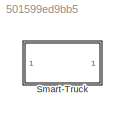
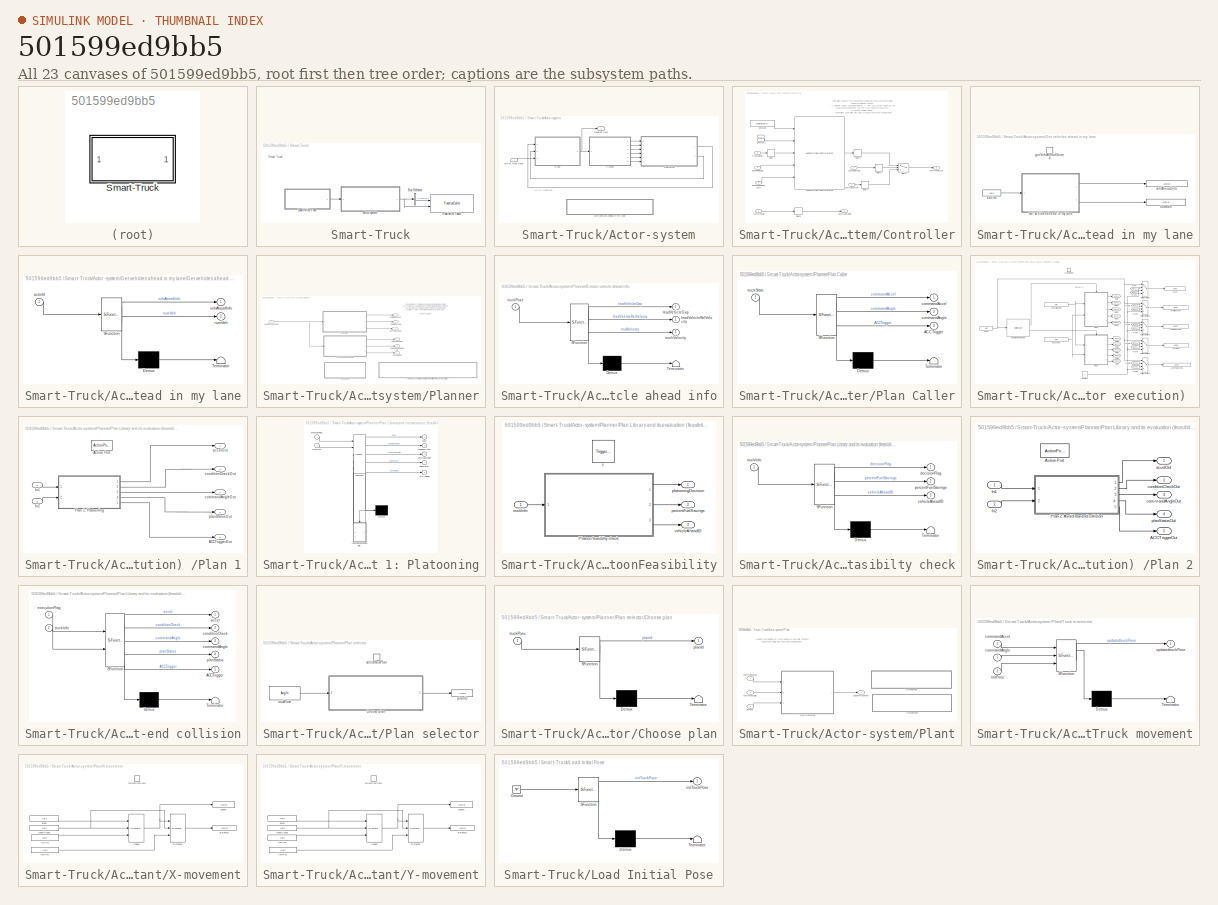
[diagram: thumbnail index - all 23 canvases of the model, root first then tree order]
MODEL slx_501599ed9bb5
KIND library
CONFIG AbsTol = auto
CONFIG EnableMultiTasking = off
CONFIG FixedStep = auto
CONFIG MaxStep = auto
CONFIG MinStep = auto
CONFIG RelTol = 1e-3
CONFIG SampleTimeConstraint = Unconstrained
CONFIG Solver = VariableStepAuto
CONFIG SolverName = VariableStepAuto
CONFIG StartTime = 0.0
CONFIG StopTime = 10.0
BLOCK [SubSystem] Smart-Truck
  InitFcn = % To get the offset for the truckId\nnumTrucks = actorCount();\ntruckXPosition(numTrucks) = str2num( get_param(gcb,'initXPos'));\ntruckVelocity(numTrucks) = str2num( get_param(gcb,'initXVel'));\n% To set the truckId\nset_param(gcb,'truckId',num2str(numTrucks + truckIdBase));\ndestXPos = get_param(gcb,'destXPos');\nactorDest(truckIdBase + numTrucks) = str2num(destXPos);
  Ports = []
  RequestExecContextInheritance = off
BLOCK [SubSystem] Smart-Truck/Actor-system
  Ports = [1, 1]
  RequestExecContextInheritance = off
BLOCK [SubSystem] Smart-Truck/Actor-system/Controller
  Ports = [6, 2]
  RequestExecContextInheritance = off
BLOCK [Inport] Smart-Truck/Actor-system/Controller/ commandAccel
  IconDisplay = Port number
BLOCK [Inport] Smart-Truck/Actor-system/Controller/ commandDir
  IconDisplay = Port number
  Port = 2
BLOCK [Inport] Smart-Truck/Actor-system/Controller/ leadVehicleGap
  IconDisplay = Port number
  Port = 4
BLOCK [Inport] Smart-Truck/Actor-system/Controller/ leadVehicleRelVelocity
  IconDisplay = Port number
  Port = 5
BLOCK [Inport] Smart-Truck/Actor-system/Controller/ truckVelocity
  IconDisplay = Port number
  Port = 6
BLOCK [Inport] Smart-Truck/Actor-system/Controller/ACCTriggerFlag
  IconDisplay = Port number
  Port = 3
BLOCK [Reference] Smart-Truck/Actor-system/Controller/Adaptive Cruise Control System  REF=mpcadaslib/Adaptive Cruise Control System
  Ports = [5, 1]
  SourceBlock = mpcadaslib/Adaptive Cruise Control System
  SourceProductBaseCode = MP
  SourceProductName = Model Predictive Control Toolbox
  SourceType = Adaptive cruise control (ACC) system
BLOCK [Constant] Smart-Truck/Actor-system/Controller/Constant
  SampleTime = -1
  Value = maxVelocity
BLOCK [Constant] Smart-Truck/Actor-system/Controller/Constant1
  Value = safeTimeGap
BLOCK [Delay] Smart-Truck/Actor-system/Controller/Delay
  DelayLength = 1
  InitialCondition = 0
  InputPortMap = u0
  Ports = [1, 1]
BLOCK [Delay] Smart-Truck/Actor-system/Controller/Delay1
  DelayLength = 1
  InitialCondition = 0
  InputPortMap = u0
  Ports = [1, 1]
BLOCK [Delay] Smart-Truck/Actor-system/Controller/Delay2
  DelayLength = 1
  InitialCondition = 0
  InputPortMap = u0
  Ports = [1, 1]
BLOCK [Delay] Smart-Truck/Actor-system/Controller/Delay3
  DelayLength = 1
  InitialCondition = 0
  InputPortMap = u0
  Ports = [1, 1]
BLOCK [Delay] Smart-Truck/Actor-system/Controller/Delay4
  DelayLength = 1
  InitialCondition = 0
  InputPortMap = u0
  Ports = [1, 1]
BLOCK [Switch] Smart-Truck/Actor-system/Controller/Switch
  Criteria = u2 ~= 0
  InputSameDT = off
  SaturateOnIntegerOverflow = off
BLOCK [Outport] Smart-Truck/Actor-system/Controller/commandAccel
  IconDisplay = Port number
BLOCK [Outport] Smart-Truck/Actor-system/Controller/commandAngle
  IconDisplay = Port number
  Port = 2
BLOCK [SubSystem] Smart-Truck/Actor-system/Get vehicles ahead in my lane
  Ports = [0, 0, 0, 1]
  RequestExecContextInheritance = off
  TreatAsAtomicUnit = on
BLOCK [SubSystem] Smart-Truck/Actor-system/Get vehicles ahead in my lane/Get vehicles ahead in my lane
  ErrorFcn = Stateflow.Translate.translate
  PermitHierarchicalResolution = ExplicitOnly
  Ports = [1, 2]
  RequestExecContextInheritance = off
  SFBlockType = MATLAB Function
  TreatAsAtomicUnit = on
BLOCK [Demux] Smart-Truck/Actor-system/Get vehicles ahead in my lane/Get vehicles ahead in my lane/ Demux 
  Outputs = 1
  Ports = [1, 1]
BLOCK [S-Function] Smart-Truck/Actor-system/Get vehicles ahead in my lane/Get vehicles ahead in my lane/ SFunction 
  EnableBusSupport = on
  FunctionName = sf_sfun
  Parameters = maxVehicles
  PortCounts = [1 3]
  Ports = [1, 3]
  SFcnIsStateOwnerBlock = off
  SFunctionDeploymentMode = off
  Tag = Stateflow S-Function smartTruckLib 15
BLOCK [Terminator] Smart-Truck/Actor-system/Get vehicles ahead in my lane/Get vehicles ahead in my lane/ Terminator 
BLOCK [Inport] Smart-Truck/Actor-system/Get vehicles ahead in my lane/Get vehicles ahead in my lane/actorId
  IconDisplay = Port number
BLOCK [Outport] Smart-Truck/Actor-system/Get vehicles ahead in my lane/Get vehicles ahead in my lane/numVeh
  IconDisplay = Port number
  Port = 2
BLOCK [Outport] Smart-Truck/Actor-system/Get vehicles ahead in my lane/Get vehicles ahead in my lane/vehAheadInfo
  IconDisplay = Port number
BLOCK [ArgIn] Smart-Truck/Actor-system/Get vehicles ahead in my lane/actorId
  ArgumentName = actorId
BLOCK [TriggerPort] Smart-Truck/Actor-system/Get vehicles ahead in my lane/getVehAheadSorted
  FunctionName = getVehAheadSorted
  FunctionVisibility = scoped
  IsSimulinkFunction = on
  Ports = []
  StatesWhenEnabling = held
  TriggerType = function-call
  VariantControl = (inherit)
BLOCK [ArgOut] Smart-Truck/Actor-system/Get vehicles ahead in my lane/numVeh
  ArgumentName = numVeh
BLOCK [ArgOut] Smart-Truck/Actor-system/Get vehicles ahead in my lane/vehAheadInfo
  ArgumentName = vehAheadInfo
  OutDataTypeStr = Bus: Vehicle
  Port = 2
  PortDimensions = maxVehicles
BLOCK [Inport] Smart-Truck/Actor-system/Initial Truck Pose
  IconDisplay = Port number
BLOCK [SubSystem] Smart-Truck/Actor-system/Planner
  Ports = [1, 6]
  RequestExecContextInheritance = off
BLOCK [Outport] Smart-Truck/Actor-system/Planner/ACCTriggerFlag
  IconDisplay = Port number
  Port = 3
BLOCK [SubSystem] Smart-Truck/Actor-system/Planner/Extract vehicle ahead info
  ErrorFcn = Stateflow.Translate.translate
  PermitHierarchicalResolution = ExplicitOnly
  Ports = [1, 3]
  RequestExecContextInheritance = off
  SFBlockType = MATLAB Function
  TreatAsAtomicUnit = on
BLOCK [Demux] Smart-Truck/Actor-system/Planner/Extract vehicle ahead info/ Demux 
  Outputs = 1
  Ports = [1, 1]
BLOCK [S-Function] Smart-Truck/Actor-system/Planner/Extract vehicle ahead info/ SFunction 
  EnableBusSupport = on
  FunctionName = sf_sfun
  Parameters = maxVelocity,safeTimeGap,standStillGap
  PortCounts = [1 4]
  Ports = [1, 4]
  SFcnIsStateOwnerBlock = off
  SFunctionDeploymentMode = off
  Tag = Stateflow S-Function smartTruckLib 16
BLOCK [Terminator] Smart-Truck/Actor-system/Planner/Extract vehicle ahead info/ Terminator 
BLOCK [Outport] Smart-Truck/Actor-system/Planner/Extract vehicle ahead info/leadVehicleGap
  IconDisplay = Port number
BLOCK [Outport] Smart-Truck/Actor-system/Planner/Extract vehicle ahead info/leadVehicleRelVelocity
  IconDisplay = Port number
  Port = 2
BLOCK [Inport] Smart-Truck/Actor-system/Planner/Extract vehicle ahead info/truckPose
  IconDisplay = Port number
BLOCK [Outport] Smart-Truck/Actor-system/Planner/Extract vehicle ahead info/truckVelocity
  IconDisplay = Port number
  Port = 3
BLOCK [SubSystem] Smart-Truck/Actor-system/Planner/Plan Caller
  ErrorFcn = Stateflow.Translate.translate
  PermitHierarchicalResolution = ExplicitOnly
  Ports = [1, 3]
  RequestExecContextInheritance = off
  SFBlockType = MATLAB Function
  TreatAsAtomicUnit = on
BLOCK [Demux] Smart-Truck/Actor-system/Planner/Plan Caller/ Demux 
  Outputs = 1
  Ports = [1, 1]
BLOCK [S-Function] Smart-Truck/Actor-system/Planner/Plan Caller/ SFunction 
  EnableBusSupport = on
  FunctionName = sf_sfun
  PortCounts = [1 4]
  Ports = [1, 4]
  SFcnIsStateOwnerBlock = off
  SFunctionDeploymentMode = off
  Tag = Stateflow S-Function smartTruckLib 17
BLOCK [Terminator] Smart-Truck/Actor-system/Planner/Plan Caller/ Terminator 
BLOCK [Outport] Smart-Truck/Actor-system/Planner/Plan Caller/ACCTrigger
  IconDisplay = Port number
  Port = 3
BLOCK [Outport] Smart-Truck/Actor-system/Planner/Plan Caller/commandAccel
  IconDisplay = Port number
BLOCK [Outport] Smart-Truck/Actor-system/Planner/Plan Caller/commandAngle
  IconDisplay = Port number
  Port = 2
BLOCK [Inport] Smart-Truck/Actor-system/Planner/Plan Caller/truckState
  IconDisplay = Port number
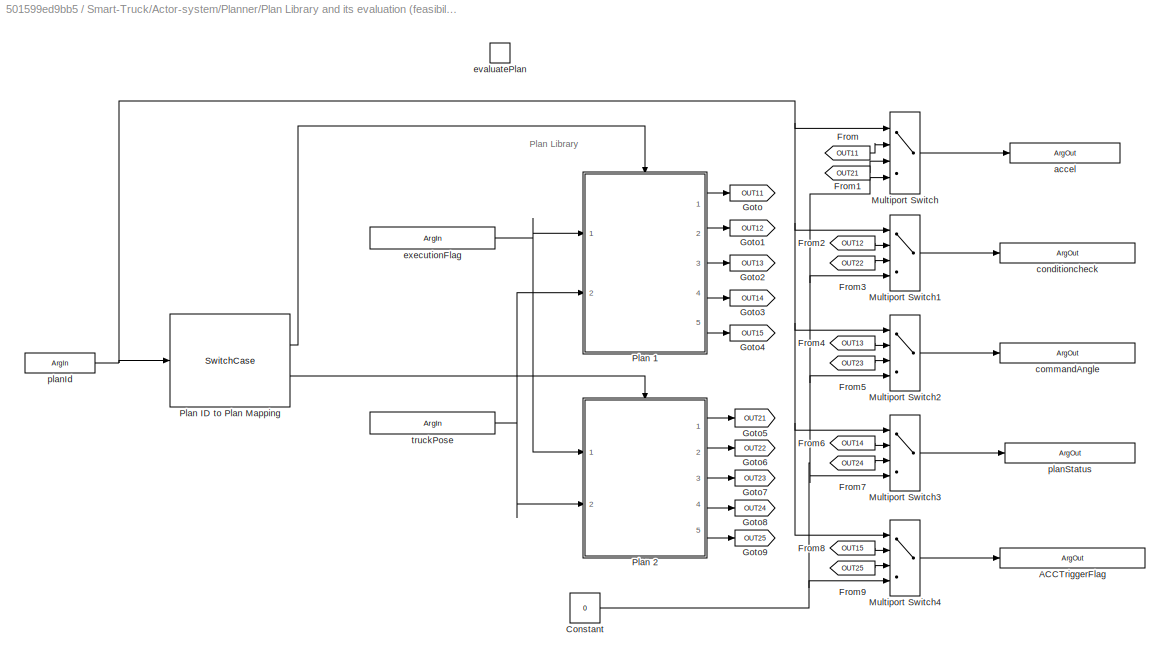
BLOCK [SubSystem] Smart-Truck/Actor-system/Planner/Plan Library and its evaluation (feasibility check or execution) 
  Ports = [0, 0, 0, 1]
  RequestExecContextInheritance = off
  TreatAsAtomicUnit = on
BLOCK [ArgOut] Smart-Truck/Actor-system/Planner/Plan Library and its evaluation (feasibility check or execution) /ACCTriggerFlag
  ArgumentName = ACCTriggerFlag
  DisableCoverage = on
  Port = 5
BLOCK [Constant] Smart-Truck/Actor-system/Planner/Plan Library and its evaluation (feasibility check or execution) /Constant
  SampleTime = -1
  Value = 0
BLOCK [From] Smart-Truck/Actor-system/Planner/Plan Library and its evaluation (feasibility check or execution) /From
  GotoTag = OUT11
BLOCK [From] Smart-Truck/Actor-system/Planner/Plan Library and its evaluation (feasibility check or execution) /From1
  GotoTag = OUT21
BLOCK [From] Smart-Truck/Actor-system/Planner/Plan Library and its evaluation (feasibility check or execution) /From2
  GotoTag = OUT12
BLOCK [From] Smart-Truck/Actor-system/Planner/Plan Library and its evaluation (feasibility check or execution) /From3
  GotoTag = OUT22
BLOCK [From] Smart-Truck/Actor-system/Planner/Plan Library and its evaluation (feasibility check or execution) /From4
  GotoTag = OUT13
BLOCK [From] Smart-Truck/Actor-system/Planner/Plan Library and its evaluation (feasibility check or execution) /From5
  GotoTag = OUT23
BLOCK [From] Smart-Truck/Actor-system/Planner/Plan Library and its evaluation (feasibility check or execution) /From6
  GotoTag = OUT14
BLOCK [From] Smart-Truck/Actor-system/Planner/Plan Library and its evaluation (feasibility check or execution) /From7
  GotoTag = OUT24
BLOCK [From] Smart-Truck/Actor-system/Planner/Plan Library and its evaluation (feasibility check or execution) /From8
  GotoTag = OUT15
BLOCK [From] Smart-Truck/Actor-system/Planner/Plan Library and its evaluation (feasibility check or execution) /From9
  GotoTag = OUT25
BLOCK [Goto] Smart-Truck/Actor-system/Planner/Plan Library and its evaluation (feasibility check or execution) /Goto
  GotoTag = OUT11
BLOCK [Goto] Smart-Truck/Actor-system/Planner/Plan Library and its evaluation (feasibility check or execution) /Goto1
  GotoTag = OUT12
BLOCK [Goto] Smart-Truck/Actor-system/Planner/Plan Library and its evaluation (feasibility check or execution) /Goto2
  GotoTag = OUT13
BLOCK [Goto] Smart-Truck/Actor-system/Planner/Plan Library and its evaluation (feasibility check or execution) /Goto3
  GotoTag = OUT14
BLOCK [Goto] Smart-Truck/Actor-system/Planner/Plan Library and its evaluation (feasibility check or execution) /Goto4
  GotoTag = OUT15
BLOCK [Goto] Smart-Truck/Actor-system/Planner/Plan Library and its evaluation (feasibility check or execution) /Goto5
  GotoTag = OUT21
BLOCK [Goto] Smart-Truck/Actor-system/Planner/Plan Library and its evaluation (feasibility check or execution) /Goto6
  GotoTag = OUT22
BLOCK [Goto] Smart-Truck/Actor-system/Planner/Plan Library and its evaluation (feasibility check or execution) /Goto7
  GotoTag = OUT23
BLOCK [Goto] Smart-Truck/Actor-system/Planner/Plan Library and its evaluation (feasibility check or execution) /Goto8
  GotoTag = OUT24
BLOCK [Goto] Smart-Truck/Actor-system/Planner/Plan Library and its evaluation (feasibility check or execution) /Goto9
  GotoTag = OUT25
BLOCK [MultiPortSwitch] Smart-Truck/Actor-system/Planner/Plan Library and its evaluation (feasibility check or execution) /Multiport Switch
  DataPortForDefault = Additional data port
  InputSameDT = off
  Inputs = 2
  Ports = [4, 1]
  SaturateOnIntegerOverflow = off
BLOCK [MultiPortSwitch] Smart-Truck/Actor-system/Planner/Plan Library and its evaluation (feasibility check or execution) /Multiport Switch1
  DataPortForDefault = Additional data port
  InputSameDT = off
  Inputs = 2
  Ports = [4, 1]
  SaturateOnIntegerOverflow = off
BLOCK [MultiPortSwitch] Smart-Truck/Actor-system/Planner/Plan Library and its evaluation (feasibility check or execution) /Multiport Switch2
  DataPortForDefault = Additional data port
  InputSameDT = off
  Inputs = 2
  Ports = [4, 1]
  SaturateOnIntegerOverflow = off
BLOCK [MultiPortSwitch] Smart-Truck/Actor-system/Planner/Plan Library and its evaluation (feasibility check or execution) /Multiport Switch3
  DataPortForDefault = Additional data port
  InputSameDT = off
  Inputs = 2
  Ports = [4, 1]
  SaturateOnIntegerOverflow = off
BLOCK [MultiPortSwitch] Smart-Truck/Actor-system/Planner/Plan Library and its evaluation (feasibility check or execution) /Multiport Switch4
  DataPortForDefault = Additional data port
  InputSameDT = off
  Inputs = 2
  Ports = [4, 1]
  SaturateOnIntegerOverflow = off
BLOCK [SubSystem] Smart-Truck/Actor-system/Planner/Plan Library and its evaluation (feasibility check or execution) /Plan 1
  Ports = [2, 5, 0, 0, 0, 0, 0, 1]
  RequestExecContextInheritance = off
  TreatAsAtomicUnit = on
BLOCK [Outport] Smart-Truck/Actor-system/Planner/Plan Library and its evaluation (feasibility check or execution) /Plan 1/ACCTriggerOut
  IconDisplay = Port number
  Port = 5
BLOCK [ActionPort] Smart-Truck/Actor-system/Planner/Plan Library and its evaluation (feasibility check or execution) /Plan 1/Action Port
BLOCK [Inport] Smart-Truck/Actor-system/Planner/Plan Library and its evaluation (feasibility check or execution) /Plan 1/In1
  IconDisplay = Port number
BLOCK [Inport] Smart-Truck/Actor-system/Planner/Plan Library and its evaluation (feasibility check or execution) /Plan 1/In2
  IconDisplay = Port number
  OutDataTypeStr = Bus: Vehicle
  Port = 2
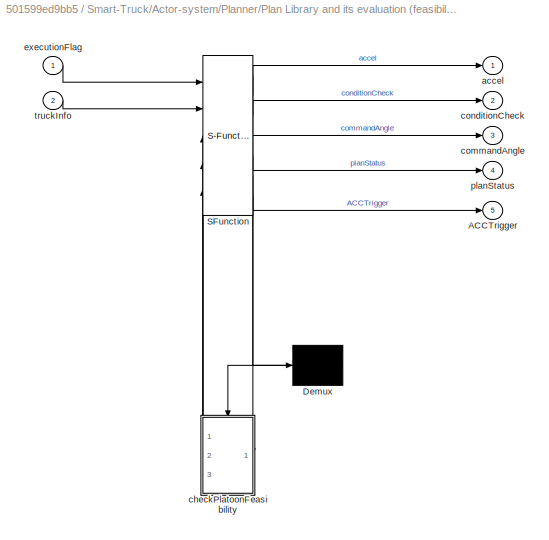
BLOCK [SubSystem] Smart-Truck/Actor-system/Planner/Plan Library and its evaluation (feasibility check or execution) /Plan 1/Plan 1: Platooning
  ErrorFcn = Stateflow.Translate.translate
  PermitHierarchicalResolution = ExplicitOnly
  Ports = [2, 5]
  RequestExecContextInheritance = off
  SFBlockType = Chart
  TreatAsAtomicUnit = on
BLOCK [Demux] Smart-Truck/Actor-system/Planner/Plan Library and its evaluation (feasibility check or execution) /Plan 1/Plan 1: Platooning/ Demux 
  Outputs = 1
  Ports = [1, 1]
BLOCK [S-Function] Smart-Truck/Actor-system/Planner/Plan Library and its evaluation (feasibility check or execution) /Plan 1/Plan 1: Platooning/ SFunction 
  EnableBusSupport = off
  FunctionName = sf_sfun
  Parameters = actorDest
  PortCounts = [5 7]
  Ports = [5, 7]
  SFcnIsStateOwnerBlock = off
  SFunctionDeploymentMode = off
  Tag = Stateflow S-Function smartTruckLib 3
BLOCK [Outport] Smart-Truck/Actor-system/Planner/Plan Library and its evaluation (feasibility check or execution) /Plan 1/Plan 1: Platooning/ACCTrigger
  IconDisplay = Port number
  Port = 5
BLOCK [Outport] Smart-Truck/Actor-system/Planner/Plan Library and its evaluation (feasibility check or execution) /Plan 1/Plan 1: Platooning/accel
  IconDisplay = Port number
BLOCK [SubSystem] Smart-Truck/Actor-system/Planner/Plan Library and its evaluation (feasibility check or execution) /Plan 1/Plan 1: Platooning/checkPlatoonFeasibility
  Ports = [1, 3, 0, 1]
  PreDeleteFcn = Stateflow.SLINSF.SimulinkMan.removePreDeleteFcn
  RequestExecContextInheritance = off
  UndoDeleteFcn = Stateflow.SLINSF.SimulinkMan.restorePreDeleteFcn
BLOCK [SubSystem] Smart-Truck/Actor-system/Planner/Plan Library and its evaluation (feasibility check or execution) /Plan 1/Plan 1: Platooning/checkPlatoonFeasibility/Platoon feasibilty check
  ErrorFcn = Stateflow.Translate.translate
  PermitHierarchicalResolution = ExplicitOnly
  Ports = [1, 3]
  RequestExecContextInheritance = off
  SFBlockType = Chart
  TreatAsAtomicUnit = on
BLOCK [Demux] Smart-Truck/Actor-system/Planner/Plan Library and its evaluation (feasibility check or execution) /Plan 1/Plan 1: Platooning/checkPlatoonFeasibility/Platoon feasibilty check/ Demux 
  Outputs = 1
  Ports = [1, 1]
BLOCK [S-Function] Smart-Truck/Actor-system/Planner/Plan Library and its evaluation (feasibility check or execution) /Plan 1/Plan 1: Platooning/checkPlatoonFeasibility/Platoon feasibilty check/ SFunction 
  EnableBusSupport = off
  FunctionName = sf_sfun
  Parameters = actorDest,maxAcceleration,maxVelocity,minOverlapJourney,platoonFuelSavings,safeTimeGap,standStillGap
  PortCounts = [1 4]
  Ports = [1, 4]
  SFcnIsStateOwnerBlock = off
  SFunctionDeploymentMode = off
  Tag = Stateflow S-Function smartTruckLib 1
BLOCK [Terminator] Smart-Truck/Actor-system/Planner/Plan Library and its evaluation (feasibility check or execution) /Plan 1/Plan 1: Platooning/checkPlatoonFeasibility/Platoon feasibilty check/ Terminator 
BLOCK [Outport] Smart-Truck/Actor-system/Planner/Plan Library and its evaluation (feasibility check or execution) /Plan 1/Plan 1: Platooning/checkPlatoonFeasibility/Platoon feasibilty check/decisionFlag
  IconDisplay = Port number
BLOCK [Outport] Smart-Truck/Actor-system/Planner/Plan Library and its evaluation (feasibility check or execution) /Plan 1/Plan 1: Platooning/checkPlatoonFeasibility/Platoon feasibilty check/percentFuelSavings
  IconDisplay = Port number
  Port = 2
BLOCK [Inport] Smart-Truck/Actor-system/Planner/Plan Library and its evaluation (feasibility check or execution) /Plan 1/Plan 1: Platooning/checkPlatoonFeasibility/Platoon feasibilty check/truckInfo
  IconDisplay = Port number
BLOCK [Outport] Smart-Truck/Actor-system/Planner/Plan Library and its evaluation (feasibility check or execution) /Plan 1/Plan 1: Platooning/checkPlatoonFeasibility/Platoon feasibilty check/vehicleAheadID
  IconDisplay = Port number
  Port = 3
BLOCK [TriggerPort] Smart-Truck/Actor-system/Planner/Plan Library and its evaluation (feasibility check or execution) /Plan 1/Plan 1: Platooning/checkPlatoonFeasibility/f
  CopyFcn = Stateflow.SLINSF.SimulinkMan.removeBlockPreDeleteFcn
  Ports = []
  PreDeleteFcn = Stateflow.SLINSF.SimulinkMan.unsafePredeleteFcn
  StatesWhenEnabling = held
  TriggerType = function-call
  VariantControl = (inherit)
BLOCK [Outport] Smart-Truck/Actor-system/Planner/Plan Library and its evaluation (feasibility check or execution) /Plan 1/Plan 1: Platooning/checkPlatoonFeasibility/percentFuelSavings
  IconDisplay = Port number
  Port = 2
BLOCK [Outport] Smart-Truck/Actor-system/Planner/Plan Library and its evaluation (feasibility check or execution) /Plan 1/Plan 1: Platooning/checkPlatoonFeasibility/platooningDecision
  IconDisplay = Port number
BLOCK [Inport] Smart-Truck/Actor-system/Planner/Plan Library and its evaluation (feasibility check or execution) /Plan 1/Plan 1: Platooning/checkPlatoonFeasibility/truckInfo
  IconDisplay = Port number
  OutDataTypeStr = Bus: Vehicle
  PortDimensions = 1
  SignalType = real
  VarSizeSig = No
BLOCK [Outport] Smart-Truck/Actor-system/Planner/Plan Library and its evaluation (feasibility check or execution) /Plan 1/Plan 1: Platooning/checkPlatoonFeasibility/vehicleAheadID
  IconDisplay = Port number
  Port = 3
BLOCK [Outport] Smart-Truck/Actor-system/Planner/Plan Library and its evaluation (feasibility check or execution) /Plan 1/Plan 1: Platooning/commandAngle
  IconDisplay = Port number
  Port = 3
BLOCK [Outport] Smart-Truck/Actor-system/Planner/Plan Library and its evaluation (feasibility check or execution) /Plan 1/Plan 1: Platooning/conditionCheck
  IconDisplay = Port number
  Port = 2
BLOCK [Inport] Smart-Truck/Actor-system/Planner/Plan Library and its evaluation (feasibility check or execution) /Plan 1/Plan 1: Platooning/executionFlag
  IconDisplay = Port number
BLOCK [Outport] Smart-Truck/Actor-system/Planner/Plan Library and its evaluation (feasibility check or execution) /Plan 1/Plan 1: Platooning/planStatus
  IconDisplay = Port number
  Port = 4
BLOCK [Inport] Smart-Truck/Actor-system/Planner/Plan Library and its evaluation (feasibility check or execution) /Plan 1/Plan 1: Platooning/truckInfo
  IconDisplay = Port number
  Port = 2
BLOCK [Outport] Smart-Truck/Actor-system/Planner/Plan Library and its evaluation (feasibility check or execution) /Plan 1/accelOut
  IconDisplay = Port number
BLOCK [Outport] Smart-Truck/Actor-system/Planner/Plan Library and its evaluation (feasibility check or execution) /Plan 1/commandAngleOut
  IconDisplay = Port number
  Port = 3
BLOCK [Outport] Smart-Truck/Actor-system/Planner/Plan Library and its evaluation (feasibility check or execution) /Plan 1/conditionCheckOut
  IconDisplay = Port number
  Port = 2
BLOCK [Outport] Smart-Truck/Actor-system/Planner/Plan Library and its evaluation (feasibility check or execution) /Plan 1/planStatusOut
  IconDisplay = Port number
  Port = 4
BLOCK [SubSystem] Smart-Truck/Actor-system/Planner/Plan Library and its evaluation (feasibility check or execution) /Plan 2
  Ports = [2, 5, 0, 0, 0, 0, 0, 1]
  RequestExecContextInheritance = off
  TreatAsAtomicUnit = on
BLOCK [Outport] Smart-Truck/Actor-system/Planner/Plan Library and its evaluation (feasibility check or execution) /Plan 2/ACCTriggerOut
  IconDisplay = Port number
  Port = 5
BLOCK [ActionPort] Smart-Truck/Actor-system/Planner/Plan Library and its evaluation (feasibility check or execution) /Plan 2/Action Port
BLOCK [Inport] Smart-Truck/Actor-system/Planner/Plan Library and its evaluation (feasibility check or execution) /Plan 2/In1
  IconDisplay = Port number
BLOCK [Inport] Smart-Truck/Actor-system/Planner/Plan Library and its evaluation (feasibility check or execution) /Plan 2/In2
  IconDisplay = Port number
  Port = 2
BLOCK [SubSystem] Smart-Truck/Actor-system/Planner/Plan Library and its evaluation (feasibility check or execution) /Plan 2/Plan 2: Avoid rear-end collision
  ErrorFcn = Stateflow.Translate.translate
  PermitHierarchicalResolution = ExplicitOnly
  Ports = [2, 5]
  RequestExecContextInheritance = off
  SFBlockType = Chart
  TreatAsAtomicUnit = on
BLOCK [Demux] Smart-Truck/Actor-system/Planner/Plan Library and its evaluation (feasibility check or execution) /Plan 2/Plan 2: Avoid rear-end collision/ Demux 
  Outputs = 1
  Ports = [1, 1]
BLOCK [S-Function] Smart-Truck/Actor-system/Planner/Plan Library and its evaluation (feasibility check or execution) /Plan 2/Plan 2: Avoid rear-end collision/ SFunction 
  EnableBusSupport = on
  FunctionName = sf_sfun
  Parameters = actorDest,initXVel,maxAcceleration,maxDeceleration,safeTimeGap,standStillGap
  PortCounts = [2 6]
  Ports = [2, 6]
  SFcnIsStateOwnerBlock = off
  SFunctionDeploymentMode = off
  Tag = Stateflow S-Function smartTruckLib 20
BLOCK [Terminator] Smart-Truck/Actor-system/Planner/Plan Library and its evaluation (feasibility check or execution) /Plan 2/Plan 2: Avoid rear-end collision/ Terminator 
BLOCK [Outport] Smart-Truck/Actor-system/Planner/Plan Library and its evaluation (feasibility check or execution) /Plan 2/Plan 2: Avoid rear-end collision/ACCTrigger
  IconDisplay = Port number
  Port = 5
BLOCK [Outport] Smart-Truck/Actor-system/Planner/Plan Library and its evaluation (feasibility check or execution) /Plan 2/Plan 2: Avoid rear-end collision/accel
  IconDisplay = Port number
BLOCK [Outport] Smart-Truck/Actor-system/Planner/Plan Library and its evaluation (feasibility check or execution) /Plan 2/Plan 2: Avoid rear-end collision/commandAngle
  IconDisplay = Port number
  Port = 3
BLOCK [Outport] Smart-Truck/Actor-system/Planner/Plan Library and its evaluation (feasibility check or execution) /Plan 2/Plan 2: Avoid rear-end collision/conditionCheck
  IconDisplay = Port number
  Port = 2
BLOCK [Inport] Smart-Truck/Actor-system/Planner/Plan Library and its evaluation (feasibility check or execution) /Plan 2/Plan 2: Avoid rear-end collision/executionFlag
  IconDisplay = Port number
BLOCK [Outport] Smart-Truck/Actor-system/Planner/Plan Library and its evaluation (feasibility check or execution) /Plan 2/Plan 2: Avoid rear-end collision/planStatus
  IconDisplay = Port number
  Port = 4
BLOCK [Inport] Smart-Truck/Actor-system/Planner/Plan Library and its evaluation (feasibility check or execution) /Plan 2/Plan 2: Avoid rear-end collision/truckInfo
  IconDisplay = Port number
  Port = 2
BLOCK [Outport] Smart-Truck/Actor-system/Planner/Plan Library and its evaluation (feasibility check or execution) /Plan 2/accelOut
  IconDisplay = Port number
BLOCK [Outport] Smart-Truck/Actor-system/Planner/Plan Library and its evaluation (feasibility check or execution) /Plan 2/commandAngleOut
  IconDisplay = Port number
  Port = 3
BLOCK [Outport] Smart-Truck/Actor-system/Planner/Plan Library and its evaluation (feasibility check or execution) /Plan 2/conditionCheckOut
  IconDisplay = Port number
  Port = 2
BLOCK [Outport] Smart-Truck/Actor-system/Planner/Plan Library and its evaluation (feasibility check or execution) /Plan 2/planStatusOut
  IconDisplay = Port number
  Port = 4
BLOCK [SwitchCase] Smart-Truck/Actor-system/Planner/Plan Library and its evaluation (feasibility check or execution) /Plan ID to Plan Mapping
  CaseConditions = {1,2}
  Ports = [1, 2]
  ShowDefaultCase = off
BLOCK [ArgOut] Smart-Truck/Actor-system/Planner/Plan Library and its evaluation (feasibility check or execution) /accel
  ArgumentName = accel
  DisableCoverage = on
BLOCK [ArgOut] Smart-Truck/Actor-system/Planner/Plan Library and its evaluation (feasibility check or execution) /commandAngle
  ArgumentName = commandAngle
  DisableCoverage = on
  Port = 3
BLOCK [ArgOut] Smart-Truck/Actor-system/Planner/Plan Library and its evaluation (feasibility check or execution) /conditioncheck
  ArgumentName = conditioncheck
  DisableCoverage = on
  Port = 2
BLOCK [TriggerPort] Smart-Truck/Actor-system/Planner/Plan Library and its evaluation (feasibility check or execution) /evaluatePlan
  FunctionName = evaluatePlan
  FunctionVisibility = scoped
  IsSimulinkFunction = on
  Ports = []
  StatesWhenEnabling = held
  TriggerType = function-call
  VariantControl = (inherit)
BLOCK [ArgIn] Smart-Truck/Actor-system/Planner/Plan Library and its evaluation (feasibility check or execution) /executionFlag
  ArgumentName = executionFlag
  Port = 2
BLOCK [ArgIn] Smart-Truck/Actor-system/Planner/Plan Library and its evaluation (feasibility check or execution) /planId
  ArgumentName = planId
  DisableCoverage = on
BLOCK [ArgOut] Smart-Truck/Actor-system/Planner/Plan Library and its evaluation (feasibility check or execution) /planStatus
  ArgumentName = planStatus
  DisableCoverage = on
  Port = 4
BLOCK [ArgIn] Smart-Truck/Actor-system/Planner/Plan Library and its evaluation (feasibility check or execution) /truckPose
  ArgumentName = truckPose
  OutDataTypeStr = Bus: Vehicle
  Port = 3
BLOCK [SubSystem] Smart-Truck/Actor-system/Planner/Plan selector
  Ports = [0, 0, 0, 1]
  RequestExecContextInheritance = off
  TreatAsAtomicUnit = on
BLOCK [SubSystem] Smart-Truck/Actor-system/Planner/Plan selector/Choose plan
  ErrorFcn = Stateflow.Translate.translate
  PermitHierarchicalResolution = ExplicitOnly
  Ports = [1, 1]
  RequestExecContextInheritance = off
  SFBlockType = MATLAB Function
  TreatAsAtomicUnit = on
BLOCK [Demux] Smart-Truck/Actor-system/Planner/Plan selector/Choose plan/ Demux 
  Outputs = 1
  Ports = [1, 1]
BLOCK [S-Function] Smart-Truck/Actor-system/Planner/Plan selector/Choose plan/ SFunction 
  EnableBusSupport = on
  FunctionName = sf_sfun
  Parameters = numPlans
  PortCounts = [1 2]
  Ports = [1, 2]
  SFcnIsStateOwnerBlock = off
  SFunctionDeploymentMode = off
  Tag = Stateflow S-Function smartTruckLib 21
BLOCK [Terminator] Smart-Truck/Actor-system/Planner/Plan selector/Choose plan/ Terminator 
BLOCK [Outport] Smart-Truck/Actor-system/Planner/Plan selector/Choose plan/planId
  IconDisplay = Port number
BLOCK [Inport] Smart-Truck/Actor-system/Planner/Plan selector/Choose plan/truckPose
  IconDisplay = Port number
BLOCK [ArgOut] Smart-Truck/Actor-system/Planner/Plan selector/planID
  ArgumentName = planID
  DisableCoverage = on
BLOCK [TriggerPort] Smart-Truck/Actor-system/Planner/Plan selector/selectNewPlan
  FunctionName = selectNewPlan
  FunctionVisibility = scoped
  IsSimulinkFunction = on
  Ports = []
  StatesWhenEnabling = held
  TriggerType = function-call
  VariantControl = (inherit)
BLOCK [ArgIn] Smart-Truck/Actor-system/Planner/Plan selector/truckPose
  ArgumentName = truckPose
  OutDataTypeStr = Bus: Vehicle
BLOCK [Outport] Smart-Truck/Actor-system/Planner/commandAccel
  IconDisplay = Port number
BLOCK [Outport] Smart-Truck/Actor-system/Planner/commandAngle
  IconDisplay = Port number
  Port = 2
BLOCK [Outport] Smart-Truck/Actor-system/Planner/leadVehicleGap
  IconDisplay = Port number
  Port = 4
BLOCK [Outport] Smart-Truck/Actor-system/Planner/leadVehicleRelVelocity
  IconDisplay = Port number
  Port = 5
BLOCK [Outport] Smart-Truck/Actor-system/Planner/truckVelocity
  IconDisplay = Port number
  Port = 6
BLOCK [Inport] Smart-Truck/Actor-system/Planner/updateTruckPose
  IconDisplay = Port number
BLOCK [SubSystem] Smart-Truck/Actor-system/Plant
  Ports = [3, 1]
  RequestExecContextInheritance = off
BLOCK [Inport] Smart-Truck/Actor-system/Plant/ commandAccel
  IconDisplay = Port number
BLOCK [SubSystem] Smart-Truck/Actor-system/Plant/Truck movement
  ErrorFcn = Stateflow.Translate.translate
  PermitHierarchicalResolution = ExplicitOnly
  Ports = [3, 1]
  RequestExecContextInheritance = off
  SFBlockType = MATLAB Function
  TreatAsAtomicUnit = on
BLOCK [Demux] Smart-Truck/Actor-system/Plant/Truck movement/ Demux 
  Outputs = 1
  Ports = [1, 1]
BLOCK [S-Function] Smart-Truck/Actor-system/Plant/Truck movement/ SFunction 
  EnableBusSupport = on
  FunctionName = sf_sfun
  Parameters = actorDest,laneWidth
  PortCounts = [3 2]
  Ports = [3, 2]
  SFcnIsStateOwnerBlock = off
  SFunctionDeploymentMode = off
  Tag = Stateflow S-Function smartTruckLib 22
BLOCK [Terminator] Smart-Truck/Actor-system/Plant/Truck movement/ Terminator 
BLOCK [Inport] Smart-Truck/Actor-system/Plant/Truck movement/commandAccel
  IconDisplay = Port number
BLOCK [Inport] Smart-Truck/Actor-system/Plant/Truck movement/commandAngle
  IconDisplay = Port number
  Port = 2
BLOCK [Inport] Smart-Truck/Actor-system/Plant/Truck movement/initPose
  IconDisplay = Port number
  Port = 3
BLOCK [Outport] Smart-Truck/Actor-system/Plant/Truck movement/updatedtruckPose
  IconDisplay = Port number
BLOCK [SubSystem] Smart-Truck/Actor-system/Plant/X-movement
  Ports = [0, 0, 0, 1]
  RequestExecContextInheritance = off
  TreatAsAtomicUnit = on
BLOCK [DiscreteIntegrator] Smart-Truck/Actor-system/Plant/X-movement/Distance
  ExternalReset = level
  ICPrevOutput = DiscIntNeverNeededParam
  ICPrevScaledInput = DiscIntNeverNeededParam
  InitialConditionSetting = Auto
  InitialConditionSource = external
  Ports = [3, 1]
  SampleTime = -1
BLOCK [DiscreteIntegrator] Smart-Truck/Actor-system/Plant/X-movement/Speed
  ExternalReset = level
  ICPrevOutput = DiscIntNeverNeededParam
  ICPrevScaledInput = DiscIntNeverNeededParam
  InitialConditionSetting = Auto
  InitialConditionSource = external
  LimitOutput = on
  LowerSaturationLimit = 0
  Ports = [3, 1]
  SampleTime = -1
BLOCK [ArgIn] Smart-Truck/Actor-system/Plant/X-movement/accel
  ArgumentName = accel
BLOCK [TriggerPort] Smart-Truck/Actor-system/Plant/X-movement/currentPositionX
  FunctionName = currentPositionX
  FunctionVisibility = scoped
  IsSimulinkFunction = on
  Ports = []
  StatesWhenEnabling = held
  TriggerType = function-call
  VariantControl = (inherit)
BLOCK [ArgOut] Smart-Truck/Actor-system/Plant/X-movement/distance1
  ArgumentName = distance
BLOCK [ArgIn] Smart-Truck/Actor-system/Plant/X-movement/initPos
  ArgumentName = initPos
  Port = 4
BLOCK [ArgIn] Smart-Truck/Actor-system/Plant/X-movement/initVel
  ArgumentName = initVel
  Port = 3
BLOCK [ArgIn] Smart-Truck/Actor-system/Plant/X-movement/resetSignal
  ArgumentName = resetSignal
  Port = 2
BLOCK [ArgOut] Smart-Truck/Actor-system/Plant/X-movement/speed1
  ArgumentName = speed
  Port = 2
BLOCK [SubSystem] Smart-Truck/Actor-system/Plant/Y-movement
  Ports = [0, 0, 0, 1]
  RequestExecContextInheritance = off
  TreatAsAtomicUnit = on
BLOCK [DiscreteIntegrator] Smart-Truck/Actor-system/Plant/Y-movement/Distance
  ExternalReset = level
  ICPrevOutput = DiscIntNeverNeededParam
  ICPrevScaledInput = DiscIntNeverNeededParam
  InitialConditionSetting = Auto
  InitialConditionSource = external
  Ports = [3, 1]
  SampleTime = -1
BLOCK [DiscreteIntegrator] Smart-Truck/Actor-system/Plant/Y-movement/Speed
  ExternalReset = level
  ICPrevOutput = DiscIntNeverNeededParam
  ICPrevScaledInput = DiscIntNeverNeededParam
  InitialConditionSetting = Auto
  InitialConditionSource = external
  LimitOutput = on
  LowerSaturationLimit = 0
  Ports = [3, 1]
  SampleTime = -1
BLOCK [ArgIn] Smart-Truck/Actor-system/Plant/Y-movement/accel
  ArgumentName = accel
BLOCK [TriggerPort] Smart-Truck/Actor-system/Plant/Y-movement/currentPositionY
  FunctionName = currentPositionY
  FunctionVisibility = scoped
  IsSimulinkFunction = on
  Ports = []
  StatesWhenEnabling = held
  TriggerType = function-call
  VariantControl = (inherit)
BLOCK [ArgOut] Smart-Truck/Actor-system/Plant/Y-movement/distance1
  ArgumentName = distance
BLOCK [ArgIn] Smart-Truck/Actor-system/Plant/Y-movement/initPos
  ArgumentName = initPos
  Port = 4
BLOCK [ArgIn] Smart-Truck/Actor-system/Plant/Y-movement/initVel
  ArgumentName = initVel
  Port = 3
BLOCK [ArgIn] Smart-Truck/Actor-system/Plant/Y-movement/resetSignal
  ArgumentName = resetSignal
  Port = 2
BLOCK [ArgOut] Smart-Truck/Actor-system/Plant/Y-movement/speed1
  ArgumentName = speed
  Port = 2
BLOCK [Inport] Smart-Truck/Actor-system/Plant/commandAngle
  IconDisplay = Port number
  Port = 2
BLOCK [Inport] Smart-Truck/Actor-system/Plant/initPose
  IconDisplay = Port number
  Port = 3
BLOCK [Outport] Smart-Truck/Actor-system/Plant/updateTruckPose
  IconDisplay = Port number
BLOCK [Outport] Smart-Truck/Actor-system/Updated Pose
  IconDisplay = Port number
BLOCK [BusSelector] Smart-Truck/Bus Selector
  OutputAsBus = off
  OutputSignals = ActorID
  Ports = [1, 1]
BLOCK [SubSystem] Smart-Truck/Load Initial Pose
  ErrorFcn = Stateflow.Translate.translate
  PermitHierarchicalResolution = ExplicitOnly
  Ports = [0, 1]
  RequestExecContextInheritance = off
  SFBlockType = MATLAB Function
  TreatAsAtomicUnit = on
BLOCK [Demux] Smart-Truck/Load Initial Pose/ Demux 
  Outputs = 1
  Ports = [1, 1]
BLOCK [Ground] Smart-Truck/Load Initial Pose/ Ground 
BLOCK [S-Function] Smart-Truck/Load Initial Pose/ SFunction 
  EnableBusSupport = on
  FunctionName = sf_sfun
  Parameters = initXPos,initXVel,initYPos,truckId
  PortCounts = [1 2]
  Ports = [1, 2]
  SFcnIsStateOwnerBlock = off
  SFunctionDeploymentMode = off
  Tag = Stateflow S-Function smartTruckLib 13
BLOCK [Terminator] Smart-Truck/Load Initial Pose/ Terminator 
BLOCK [Outport] Smart-Truck/Load Initial Pose/initTruckPose
  IconDisplay = Port number
BLOCK [FunctionCaller] Smart-Truck/Publish to Table
  FunctionPrototype = setActorTableEntry(key,tableEntry)
  Ports = [2]
ANNOTATION Smart-Truck: Smart Truck
ANNOTATION Smart-Truck/Actor-system: Utility functions
ANNOTATION Smart-Truck/Actor-system/Controller: Controller outputs the command-acceleration and command-angle based on planner output - If planner sends ACCTriggerFlag as 1, then ACC system governs the command-acceleration for the truck based on pose info of narest vehicle ahead. - Otherwise, controller just pass through command acceleration sent by planner.
ANNOTATION Smart-Truck/Actor-system/Planner: - Execute the current plan and selects a new plan to execute if current plan has completed. Planner either itself outputs the command acceleration and command angle or tells the controller to go to Adaptive-cruise-control mode using ACCTriggerFlag. - Planner outputs: (i) commandAccel - Valid output only if ACCTriggerFlag is 0. (ii) commandAngle - Valid output only if ACCTriggerFlag is 0. (iii)ACCT...<+385ch>
ANNOTATION Smart-Truck/Actor-system/Planner/Plan Library and its evaluation (feasibility check or execution) : Plan Library
ANNOTATION Smart-Truck/Actor-system/Plant: Update the position of truck based on controller outputs (command angle and command acceleration).
LINE Smart-Truck/Actor-system/Controller/ commandAccel:1 -> Smart-Truck/Actor-system/Controller/Delay2:1
LINE Smart-Truck/Actor-system/Controller/ commandDir:1 -> Smart-Truck/Actor-system/Controller/Delay1:1
LINE Smart-Truck/Actor-system/Controller/ leadVehicleGap:1 -> Smart-Truck/Actor-system/Controller/Adaptive Cruise Control System:4
LINE Smart-Truck/Actor-system/Controller/ leadVehicleRelVelocity:1 -> Smart-Truck/Actor-system/Controller/Adaptive Cruise Control System:5
LINE Smart-Truck/Actor-system/Controller/ truckVelocity:1 -> Smart-Truck/Actor-system/Controller/Delay:1
LINE Smart-Truck/Actor-system/Controller/ACCTriggerFlag:1 -> Smart-Truck/Actor-system/Controller/Delay3:1
LINE Smart-Truck/Actor-system/Controller/Adaptive Cruise Control System:1 -> Smart-Truck/Actor-system/Controller/Delay4:1
LINE Smart-Truck/Actor-system/Controller/Constant1:1 -> Smart-Truck/Actor-system/Controller/Adaptive Cruise Control System:2
LINE Smart-Truck/Actor-system/Controller/Constant:1 -> Smart-Truck/Actor-system/Controller/Adaptive Cruise Control System:1
LINE Smart-Truck/Actor-system/Controller/Delay1:1 -> Smart-Truck/Actor-system/Controller/commandAngle:1
LINE Smart-Truck/Actor-system/Controller/Delay2:1 -> Smart-Truck/Actor-system/Controller/Switch:3
LINE Smart-Truck/Actor-system/Controller/Delay3:1 -> Smart-Truck/Actor-system/Controller/Switch:2
LINE Smart-Truck/Actor-system/Controller/Delay4:1 -> Smart-Truck/Actor-system/Controller/Switch:1
LINE Smart-Truck/Actor-system/Controller/Delay:1 -> Smart-Truck/Actor-system/Controller/Adaptive Cruise Control System:3
LINE Smart-Truck/Actor-system/Controller/Switch:1 -> Smart-Truck/Actor-system/Controller/commandAccel:1
LINE Smart-Truck/Actor-system/Controller:1 -> Smart-Truck/Actor-system/Plant:1
LINE Smart-Truck/Actor-system/Controller:2 -> Smart-Truck/Actor-system/Plant:2
LINE Smart-Truck/Actor-system/Get vehicles ahead in my lane/Get vehicles ahead in my lane:1 -> Smart-Truck/Actor-system/Get vehicles ahead in my lane/vehAheadInfo:1
LINE Smart-Truck/Actor-system/Get vehicles ahead in my lane/Get vehicles ahead in my lane:2 -> Smart-Truck/Actor-system/Get vehicles ahead in my lane/numVeh:1
LINE Smart-Truck/Actor-system/Get vehicles ahead in my lane/actorId:1 -> Smart-Truck/Actor-system/Get vehicles ahead in my lane/Get vehicles ahead in my lane:1
LINE Smart-Truck/Actor-system/Initial Truck Pose:1 -> Smart-Truck/Actor-system/Plant:3
LINE Smart-Truck/Actor-system/Planner/Extract vehicle ahead info:1 -> Smart-Truck/Actor-system/Planner/leadVehicleGap:1
LINE Smart-Truck/Actor-system/Planner/Extract vehicle ahead info:2 -> Smart-Truck/Actor-system/Planner/leadVehicleRelVelocity:1
LINE Smart-Truck/Actor-system/Planner/Extract vehicle ahead info:3 -> Smart-Truck/Actor-system/Planner/truckVelocity:1
LINE Smart-Truck/Actor-system/Planner/Plan Caller:1 -> Smart-Truck/Actor-system/Planner/commandAccel:1
LINE Smart-Truck/Actor-system/Planner/Plan Caller:2 -> Smart-Truck/Actor-system/Planner/commandAngle:1
LINE Smart-Truck/Actor-system/Planner/Plan Caller:3 -> Smart-Truck/Actor-system/Planner/ACCTriggerFlag:1
NET Smart-Truck/Actor-system/Planner/Plan Library and its evaluation (feasibility check or execution) /Constant:1 -> Smart-Truck/Actor-system/Planner/Plan Library and its evaluation (feasibility check or execution) /Multiport Switch1:4, Smart-Truck/Actor-system/Planner/Plan Library and its evaluation (feasibility check or execution) /Multiport Switch2:4, Smart-Truck/Actor-system/Planner/Plan Library and its evaluation (feasibility check or execution) /Multiport Switch3:4, Smart-Truck/Actor-system/Planner/Plan Library and its evaluation (feasibility check or execution) /Multiport Switch4:4, Smart-Truck/Actor-system/Planner/Plan Library and its evaluation (feasibility check or execution) /Multiport Switch:4
LINE Smart-Truck/Actor-system/Planner/Plan Library and its evaluation (feasibility check or execution) /From1:1 -> Smart-Truck/Actor-system/Planner/Plan Library and its evaluation (feasibility check or execution) /Multiport Switch:3
LINE Smart-Truck/Actor-system/Planner/Plan Library and its evaluation (feasibility check or execution) /From2:1 -> Smart-Truck/Actor-system/Planner/Plan Library and its evaluation (feasibility check or execution) /Multiport Switch1:2
LINE Smart-Truck/Actor-system/Planner/Plan Library and its evaluation (feasibility check or execution) /From3:1 -> Smart-Truck/Actor-system/Planner/Plan Library and its evaluation (feasibility check or execution) /Multiport Switch1:3
LINE Smart-Truck/Actor-system/Planner/Plan Library and its evaluation (feasibility check or execution) /From4:1 -> Smart-Truck/Actor-system/Planner/Plan Library and its evaluation (feasibility check or execution) /Multiport Switch2:2
LINE Smart-Truck/Actor-system/Planner/Plan Library and its evaluation (feasibility check or execution) /From5:1 -> Smart-Truck/Actor-system/Planner/Plan Library and its evaluation (feasibility check or execution) /Multiport Switch2:3
LINE Smart-Truck/Actor-system/Planner/Plan Library and its evaluation (feasibility check or execution) /From6:1 -> Smart-Truck/Actor-system/Planner/Plan Library and its evaluation (feasibility check or execution) /Multiport Switch3:2
LINE Smart-Truck/Actor-system/Planner/Plan Library and its evaluation (feasibility check or execution) /From7:1 -> Smart-Truck/Actor-system/Planner/Plan Library and its evaluation (feasibility check or execution) /Multiport Switch3:3
LINE Smart-Truck/Actor-system/Planner/Plan Library and its evaluation (feasibility check or execution) /From8:1 -> Smart-Truck/Actor-system/Planner/Plan Library and its evaluation (feasibility check or execution) /Multiport Switch4:2
LINE Smart-Truck/Actor-system/Planner/Plan Library and its evaluation (feasibility check or execution) /From9:1 -> Smart-Truck/Actor-system/Planner/Plan Library and its evaluation (feasibility check or execution) /Multiport Switch4:3
LINE Smart-Truck/Actor-system/Planner/Plan Library and its evaluation (feasibility check or execution) /From:1 -> Smart-Truck/Actor-system/Planner/Plan Library and its evaluation (feasibility check or execution) /Multiport Switch:2
LINE Smart-Truck/Actor-system/Planner/Plan Library and its evaluation (feasibility check or execution) /Multiport Switch1:1 -> Smart-Truck/Actor-system/Planner/Plan Library and its evaluation (feasibility check or execution) /conditioncheck:1
LINE Smart-Truck/Actor-system/Planner/Plan Library and its evaluation (feasibility check or execution) /Multiport Switch2:1 -> Smart-Truck/Actor-system/Planner/Plan Library and its evaluation (feasibility check or execution) /commandAngle:1
LINE Smart-Truck/Actor-system/Planner/Plan Library and its evaluation (feasibility check or execution) /Multiport Switch3:1 -> Smart-Truck/Actor-system/Planner/Plan Library and its evaluation (feasibility check or execution) /planStatus:1
LINE Smart-Truck/Actor-system/Planner/Plan Library and its evaluation (feasibility check or execution) /Multiport Switch4:1 -> Smart-Truck/Actor-system/Planner/Plan Library and its evaluation (feasibility check or execution) /ACCTriggerFlag:1
LINE Smart-Truck/Actor-system/Planner/Plan Library and its evaluation (feasibility check or execution) /Multiport Switch:1 -> Smart-Truck/Actor-system/Planner/Plan Library and its evaluation (feasibility check or execution) /accel:1
LINE Smart-Truck/Actor-system/Planner/Plan Library and its evaluation (feasibility check or execution) /Plan 1/In1:1 -> Smart-Truck/Actor-system/Planner/Plan Library and its evaluation (feasibility check or execution) /Plan 1/Plan 1: Platooning:1
LINE Smart-Truck/Actor-system/Planner/Plan Library and its evaluation (feasibility check or execution) /Plan 1/In2:1 -> Smart-Truck/Actor-system/Planner/Plan Library and its evaluation (feasibility check or execution) /Plan 1/Plan 1: Platooning:2
LINE Smart-Truck/Actor-system/Planner/Plan Library and its evaluation (feasibility check or execution) /Plan 1/Plan 1: Platooning:1 -> Smart-Truck/Actor-system/Planner/Plan Library and its evaluation (feasibility check or execution) /Plan 1/accelOut:1
LINE Smart-Truck/Actor-system/Planner/Plan Library and its evaluation (feasibility check or execution) /Plan 1/Plan 1: Platooning:2 -> Smart-Truck/Actor-system/Planner/Plan Library and its evaluation (feasibility check or execution) /Plan 1/conditionCheckOut:1
LINE Smart-Truck/Actor-system/Planner/Plan Library and its evaluation (feasibility check or execution) /Plan 1/Plan 1: Platooning:3 -> Smart-Truck/Actor-system/Planner/Plan Library and its evaluation (feasibility check or execution) /Plan 1/commandAngleOut:1
LINE Smart-Truck/Actor-system/Planner/Plan Library and its evaluation (feasibility check or execution) /Plan 1/Plan 1: Platooning:4 -> Smart-Truck/Actor-system/Planner/Plan Library and its evaluation (feasibility check or execution) /Plan 1/planStatusOut:1
LINE Smart-Truck/Actor-system/Planner/Plan Library and its evaluation (feasibility check or execution) /Plan 1/Plan 1: Platooning:5 -> Smart-Truck/Actor-system/Planner/Plan Library and its evaluation (feasibility check or execution) /Plan 1/ACCTriggerOut:1
LINE Smart-Truck/Actor-system/Planner/Plan Library and its evaluation (feasibility check or execution) /Plan 1:1 -> Smart-Truck/Actor-system/Planner/Plan Library and its evaluation (feasibility check or execution) /Goto:1
LINE Smart-Truck/Actor-system/Planner/Plan Library and its evaluation (feasibility check or execution) /Plan 1:2 -> Smart-Truck/Actor-system/Planner/Plan Library and its evaluation (feasibility check or execution) /Goto1:1
LINE Smart-Truck/Actor-system/Planner/Plan Library and its evaluation (feasibility check or execution) /Plan 1:3 -> Smart-Truck/Actor-system/Planner/Plan Library and its evaluation (feasibility check or execution) /Goto2:1
LINE Smart-Truck/Actor-system/Planner/Plan Library and its evaluation (feasibility check or execution) /Plan 1:4 -> Smart-Truck/Actor-system/Planner/Plan Library and its evaluation (feasibility check or execution) /Goto3:1
LINE Smart-Truck/Actor-system/Planner/Plan Library and its evaluation (feasibility check or execution) /Plan 1:5 -> Smart-Truck/Actor-system/Planner/Plan Library and its evaluation (feasibility check or execution) /Goto4:1
LINE Smart-Truck/Actor-system/Planner/Plan Library and its evaluation (feasibility check or execution) /Plan 2/In1:1 -> Smart-Truck/Actor-system/Planner/Plan Library and its evaluation (feasibility check or execution) /Plan 2/Plan 2: Avoid rear-end collision:1
LINE Smart-Truck/Actor-system/Planner/Plan Library and its evaluation (feasibility check or execution) /Plan 2/In2:1 -> Smart-Truck/Actor-system/Planner/Plan Library and its evaluation (feasibility check or execution) /Plan 2/Plan 2: Avoid rear-end collision:2
LINE Smart-Truck/Actor-system/Planner/Plan Library and its evaluation (feasibility check or execution) /Plan 2/Plan 2: Avoid rear-end collision:1 -> Smart-Truck/Actor-system/Planner/Plan Library and its evaluation (feasibility check or execution) /Plan 2/accelOut:1
LINE Smart-Truck/Actor-system/Planner/Plan Library and its evaluation (feasibility check or execution) /Plan 2/Plan 2: Avoid rear-end collision:2 -> Smart-Truck/Actor-system/Planner/Plan Library and its evaluation (feasibility check or execution) /Plan 2/conditionCheckOut:1
LINE Smart-Truck/Actor-system/Planner/Plan Library and its evaluation (feasibility check or execution) /Plan 2/Plan 2: Avoid rear-end collision:3 -> Smart-Truck/Actor-system/Planner/Plan Library and its evaluation (feasibility check or execution) /Plan 2/commandAngleOut:1
LINE Smart-Truck/Actor-system/Planner/Plan Library and its evaluation (feasibility check or execution) /Plan 2/Plan 2: Avoid rear-end collision:4 -> Smart-Truck/Actor-system/Planner/Plan Library and its evaluation (feasibility check or execution) /Plan 2/planStatusOut:1
LINE Smart-Truck/Actor-system/Planner/Plan Library and its evaluation (feasibility check or execution) /Plan 2/Plan 2: Avoid rear-end collision:5 -> Smart-Truck/Actor-system/Planner/Plan Library and its evaluation (feasibility check or execution) /Plan 2/ACCTriggerOut:1
LINE Smart-Truck/Actor-system/Planner/Plan Library and its evaluation (feasibility check or execution) /Plan 2:1 -> Smart-Truck/Actor-system/Planner/Plan Library and its evaluation (feasibility check or execution) /Goto5:1
LINE Smart-Truck/Actor-system/Planner/Plan Library and its evaluation (feasibility check or execution) /Plan 2:2 -> Smart-Truck/Actor-system/Planner/Plan Library and its evaluation (feasibility check or execution) /Goto6:1
LINE Smart-Truck/Actor-system/Planner/Plan Library and its evaluation (feasibility check or execution) /Plan 2:3 -> Smart-Truck/Actor-system/Planner/Plan Library and its evaluation (feasibility check or execution) /Goto7:1
LINE Smart-Truck/Actor-system/Planner/Plan Library and its evaluation (feasibility check or execution) /Plan 2:4 -> Smart-Truck/Actor-system/Planner/Plan Library and its evaluation (feasibility check or execution) /Goto8:1
LINE Smart-Truck/Actor-system/Planner/Plan Library and its evaluation (feasibility check or execution) /Plan 2:5 -> Smart-Truck/Actor-system/Planner/Plan Library and its evaluation (feasibility check or execution) /Goto9:1
LINE Smart-Truck/Actor-system/Planner/Plan Library and its evaluation (feasibility check or execution) /Plan ID to Plan Mapping:1 -> Smart-Truck/Actor-system/Planner/Plan Library and its evaluation (feasibility check or execution) /Plan 1:ifaction
LINE Smart-Truck/Actor-system/Planner/Plan Library and its evaluation (feasibility check or execution) /Plan ID to Plan Mapping:2 -> Smart-Truck/Actor-system/Planner/Plan Library and its evaluation (feasibility check or execution) /Plan 2:ifaction
NET Smart-Truck/Actor-system/Planner/Plan Library and its evaluation (feasibility check or execution) /executionFlag:1 -> Smart-Truck/Actor-system/Planner/Plan Library and its evaluation (feasibility check or execution) /Plan 1:1, Smart-Truck/Actor-system/Planner/Plan Library and its evaluation (feasibility check or execution) /Plan 2:1
NET Smart-Truck/Actor-system/Planner/Plan Library and its evaluation (feasibility check or execution) /planId:1 -> Smart-Truck/Actor-system/Planner/Plan Library and its evaluation (feasibility check or execution) /Multiport Switch1:1, Smart-Truck/Actor-system/Planner/Plan Library and its evaluation (feasibility check or execution) /Multiport Switch2:1, Smart-Truck/Actor-system/Planner/Plan Library and its evaluation (feasibility check or execution) /Multiport Switch3:1, Smart-Truck/Actor-system/Planner/Plan Library and its evaluation (feasibility check or execution) /Multiport Switch4:1, Smart-Truck/Actor-system/Planner/Plan Library and its evaluation (feasibility check or execution) /Multiport Switch:1, Smart-Truck/Actor-system/Planner/Plan Library and its evaluation (feasibility check or execution) /Plan ID to Plan Mapping:1
NET Smart-Truck/Actor-system/Planner/Plan Library and its evaluation (feasibility check or execution) /truckPose:1 -> Smart-Truck/Actor-system/Planner/Plan Library and its evaluation (feasibility check or execution) /Plan 1:2, Smart-Truck/Actor-system/Planner/Plan Library and its evaluation (feasibility check or execution) /Plan 2:2
LINE Smart-Truck/Actor-system/Planner/Plan selector/Choose plan:1 -> Smart-Truck/Actor-system/Planner/Plan selector/planID:1
LINE Smart-Truck/Actor-system/Planner/Plan selector/truckPose:1 -> Smart-Truck/Actor-system/Planner/Plan selector/Choose plan:1
NET Smart-Truck/Actor-system/Planner/updateTruckPose:1 -> Smart-Truck/Actor-system/Planner/Extract vehicle ahead info:1, Smart-Truck/Actor-system/Planner/Plan Caller:1
LINE Smart-Truck/Actor-system/Planner:1 -> Smart-Truck/Actor-system/Controller:1
LINE Smart-Truck/Actor-system/Planner:2 -> Smart-Truck/Actor-system/Controller:2
LINE Smart-Truck/Actor-system/Planner:3 -> Smart-Truck/Actor-system/Controller:3
LINE Smart-Truck/Actor-system/Planner:4 -> Smart-Truck/Actor-system/Controller:4
LINE Smart-Truck/Actor-system/Planner:5 -> Smart-Truck/Actor-system/Controller:5
LINE Smart-Truck/Actor-system/Planner:6 -> Smart-Truck/Actor-system/Controller:6
LINE Smart-Truck/Actor-system/Plant/ commandAccel:1 -> Smart-Truck/Actor-system/Plant/Truck movement:1
LINE Smart-Truck/Actor-system/Plant/Truck movement:1 -> Smart-Truck/Actor-system/Plant/updateTruckPose:1
LINE Smart-Truck/Actor-system/Plant/X-movement/Distance:1 -> Smart-Truck/Actor-system/Plant/X-movement/distance1:1
NET Smart-Truck/Actor-system/Plant/X-movement/Speed:1 -> Smart-Truck/Actor-system/Plant/X-movement/Distance:1, Smart-Truck/Actor-system/Plant/X-movement/speed1:1
LINE Smart-Truck/Actor-system/Plant/X-movement/accel:1 -> Smart-Truck/Actor-system/Plant/X-movement/Speed:1
LINE Smart-Truck/Actor-system/Plant/X-movement/initPos:1 -> Smart-Truck/Actor-system/Plant/X-movement/Distance:3
LINE Smart-Truck/Actor-system/Plant/X-movement/initVel:1 -> Smart-Truck/Actor-system/Plant/X-movement/Speed:3
NET Smart-Truck/Actor-system/Plant/X-movement/resetSignal:1 -> Smart-Truck/Actor-system/Plant/X-movement/Distance:2, Smart-Truck/Actor-system/Plant/X-movement/Speed:2
LINE Smart-Truck/Actor-system/Plant/Y-movement/Distance:1 -> Smart-Truck/Actor-system/Plant/Y-movement/distance1:1
NET Smart-Truck/Actor-system/Plant/Y-movement/Speed:1 -> Smart-Truck/Actor-system/Plant/Y-movement/Distance:1, Smart-Truck/Actor-system/Plant/Y-movement/speed1:1
LINE Smart-Truck/Actor-system/Plant/Y-movement/accel:1 -> Smart-Truck/Actor-system/Plant/Y-movement/Speed:1
LINE Smart-Truck/Actor-system/Plant/Y-movement/initPos:1 -> Smart-Truck/Actor-system/Plant/Y-movement/Distance:3
LINE Smart-Truck/Actor-system/Plant/Y-movement/initVel:1 -> Smart-Truck/Actor-system/Plant/Y-movement/Speed:3
NET Smart-Truck/Actor-system/Plant/Y-movement/resetSignal:1 -> Smart-Truck/Actor-system/Plant/Y-movement/Distance:2, Smart-Truck/Actor-system/Plant/Y-movement/Speed:2
LINE Smart-Truck/Actor-system/Plant/commandAngle:1 -> Smart-Truck/Actor-system/Plant/Truck movement:2
LINE Smart-Truck/Actor-system/Plant/initPose:1 -> Smart-Truck/Actor-system/Plant/Truck movement:3
NET Smart-Truck/Actor-system/Plant:1 -> Smart-Truck/Actor-system/Planner:1, Smart-Truck/Actor-system/Updated Pose:1
NET Smart-Truck/Actor-system:1 -> Smart-Truck/Bus Selector:1, Smart-Truck/Publish to Table:2
LINE Smart-Truck/Bus Selector:1 -> Smart-Truck/Publish to Table:1
LINE Smart-Truck/Load Initial Pose:1 -> Smart-Truck/Actor-system:1
note: NET lines group one-source signal fan-out (src -> all destinations, sorted); 1:1 wires keep LINE
CHART Smart-Truck/Actor-system/Planner/Plan Library and its evaluation (feasibility check or execution) /Plan 1/Plan 1: Platooning/checkPlatoonFeasibility/Platoon feasibilty check states=2 transitions=44
  STATE_LABEL 'Check whether forming a platoon is possible and it is beneficial to do so in terms of fuel savings.\n- Fuel savings during the platoon comes from the fact, that a truck folowing another one experiences much reduced aerodynamic drag \n   and typically saves (15-20 %) fuel.\n- Fuel consumtions also depends on the velocity and acceleration of truck.\nCombing the factors affecting the fuel consumption, it...<+789ch>'
  STATE_LABEL 'fuelConsumption = fuelConsumptionCalculator(speed,accel,time)'
  STATE_LABEL 'SCRIPT:\nfunction fuelConsumption = fuelConsumptionCalculator(speed,accel,time)\n% fuel consumption model\nb = [0.1569, 0.02450,-0.0007415,0.00005975];\nc = [0.07224, 0.09681,0.001075];\nfuelConsumption = time * (accel * (c(1) + c(2)*speed + c(3)*speed^2) +(b(1) + b(2)*speed + b(3)*speed^2 + b(4)*speed^3));\nend'
CHART Smart-Truck/Actor-system/Planner/Plan Library and its evaluation (feasibility check or execution) /Plan 1/Plan 1: Platooning states=4 transitions=3
  STATE_LABEL '[platooningDecision, percentFuelSavings, vehicleAheadID] = checkPlatoonFeasibility(truckInfo)'
  STATE_LABEL 'Platooning Plan:\n- Truck forms platoon with the actor ahead. This arrangement continues till one of them reaches its destination.\n- Although a truck forms a platoon with the truck ahead only if it anticipates platooning to be fuel-saving.\n\n\n'
  STATE_LABEL 'MoveAsPlatoon\nentry:\n   platoonJourneyCompleted = 0;\n   [numVehAhead vehiclesAheadInfo] = getVehAheadSorted(truckInfo.ActorID);\n   for i=1:numVehAhead % Convert to self-centered pose\n       vehiclesAheadInfo(i) = globalToEgoCentered(truckInfo, vehiclesAheadInfo(i));\n   end\n   nearestVeh = vehiclesAheadInfo(1);   % Nearest vehicle Ahead\n   nearestVehDest = actorDest(nearestVeh.ActorID);\n   truckDes...<+994ch>'
  STATE_LABEL 'FeasibilityCheckofPlatoon\nentry:\n conditionCheck = 0;\n ACCTrigger = 0;\n percentFuelSavings = 0;\n during:\n     [conditionCheck percentFuelSavings, vehicleAheadID] = checkPlatoonFeasibility(truckInfo);\n     truckPlatoonInfo.ActorID = truckInfo.ActorID;\n     if conditionCheck == 1\n         truckPlatoonInfo.PlatoonStatus = 1;\n         truckPlatoonInfo.FuelSavings = percentFuelSavings;\n         truckPl...<+340ch>'
CHART Smart-Truck/Load Initial Pose states=1 transitions=1
  STATE_LABEL 'eML_blk_kernel()'
  STATE_LABEL "SCRIPT:\nfunction initTruckPose = loadTruckInitPose(truckId, initXPos, initYPos, initXVel)\n% Write initial pose entry into the actor pose table and return the same\n\npersistent truckPose;\nif(isempty(truckPose))\n    truckPose = struct('ActorID', truckId, 'Position', [initXPos initYPos 0], ...\n        'Velocity', [abs(initXVel) 0 0], 'Roll', 0, 'Pitch', 0, 'Yaw', 0, ...\n        'AngularVelocity', [0 0...<+80ch>"
CHART Smart-Truck/Actor-system/Get vehicles ahead in my lane/Get vehicles ahead in my lane states=1 transitions=1
  STATE_LABEL 'eML_blk_kernel()'
  STATE_LABEL "SCRIPT:\nfunction [vehAheadInfo, numVeh]  = getVehAheadSorted(actorId, maxVehicles)\n% Call the data-table query for getting the list of vehicles ahead\n% and returns the sorted list of those vehicles in increasing order of\n% their distance from truck.\nactorStruct = struct('ActorID', 0, 'Position', [0 0 0], ...\n    'Velocity', [0 0 0], 'Roll', 0, 'Pitch', 0, 'Yaw', 0, ...\n    'AngularVelocity', [0 0 ...<+787ch>"
CHART Smart-Truck/Actor-system/Planner/Extract vehicle ahead info states=1 transitions=1
  STATE_LABEL 'eML_blk_kernel()'
  STATE_LABEL 'SCRIPT:\nfunction [leadVehicleGap, leadVehicleRelVelocity, truckVelocity] = getVehAheadInfo( ...\n    truckPose, maxVelocity, safeTimeGap, standStillGap)\n% Get Lead vehicle info for Adaptive cruise control mode.\n\ntruckVelocity = truckPose.Velocity(1);\n[numVeh, vehAheadInfo] = getVehAheadSorted(truckPose.ActorID);\nfor i = 1 : numVeh % Convert to self-centered pose\n    vehAheadInfo(i) = globalToEgoCen...<+426ch>'
CHART Smart-Truck/Actor-system/Planner/Plan Caller states=1 transitions=1
  STATE_LABEL 'eML_blk_kernel()'
  STATE_LABEL 'SCRIPT:\nfunction [commandAccel, commandAngle, ACCTrigger]  = planSelectAndExecute(truckState)\n% Execute the current plan and select a new plan to execute if cureent plan\n% has completed.\n\npersistent planId;\npersistent planStatus;\ncommandAngle = 0;\ncommandAccel = 0;\nACCTrigger = 0;\nif isempty(planStatus)\n    % no plan is selected\n    planId = 0;\n    planStatus = 0;\nend\nif(planStatus == 0) % If no p...<+281ch>'
CHART Smart-Truck/Actor-system/Planner/Plan Library and its evaluation (feasibility check or execution) /Plan 2/Plan 2: Avoid rear-end collision states=2 transitions=20
  STATE_LABEL 'Plan to avoid collision with vehicle ahead .\n\n- If there is a vehicle ahead, decelerate if required to maintain the safe gap.\n- Otherwise accelerate to reach optimal velocity for maximum fuel effeciency.\n'
  STATE_LABEL 'acceleration = checkForAcceleration(truckVel, gap)'
  STATE_LABEL 'SCRIPT:\nfunction acceleration = checkForAcceleration(truckVel, gap)\n% Calculate required deceleration to maintain safe gap\n% If gap is more than safe-gap  required, then check if there is any\n% acceleration required to reach desired velocity (i.e. initial velocity)\nacceleration = 0;\nadditionalSafeGap = 10; % Vehicle to accelerate only if it has additional\n% precautionary safety gap on top of requi...<+231ch>'
CHART Smart-Truck/Actor-system/Planner/Plan selector/Choose plan states=1 transitions=1
  STATE_LABEL 'eML_blk_kernel()'
  STATE_LABEL 'SCRIPT:\nfunction planId = findFeasiblePlan( truckPose, numPlans)\n% Find a plan which has highest priority and is feasible based on entry\n% condition\n\nplanId = 0;\nexecutionFlag = 0; % Only feasibility of plan is checked, plan is not executed\n% Loop through all the plans to select one\nfor index = 1 : numPlans\n    [~, conditionCheck, ~, ~] = evaluatePlan(index, executionFlag, truckPose);\n    if(condi...<+67ch>'
CHART Smart-Truck/Actor-system/Plant/Truck movement states=1 transitions=1
  STATE_LABEL 'eML_blk_kernel()'
  STATE_LABEL 'SCRIPT:\nfunction updatedtruckPose  = simulateTruckMovement(commandAccel, commandAngle, initPose, actorDest, laneWidth)\n% Update the position of truck based on controller outputs (command\n% angle and command acceleration)\n\npersistent truckPose;\npersistent prevCommandAngle;\npersistent initVelocityX;\npersistent initPositionX;\npersistent initVelocityY;\npersistent initPositionY;\npersistent vehStopFlag;...<+2584ch>'
